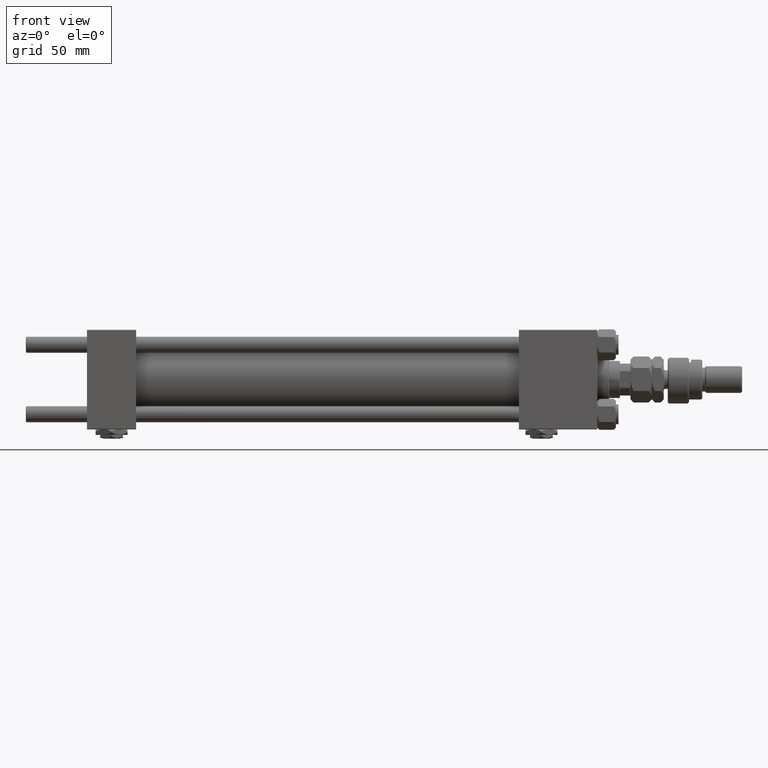
[diagram: clean part render]
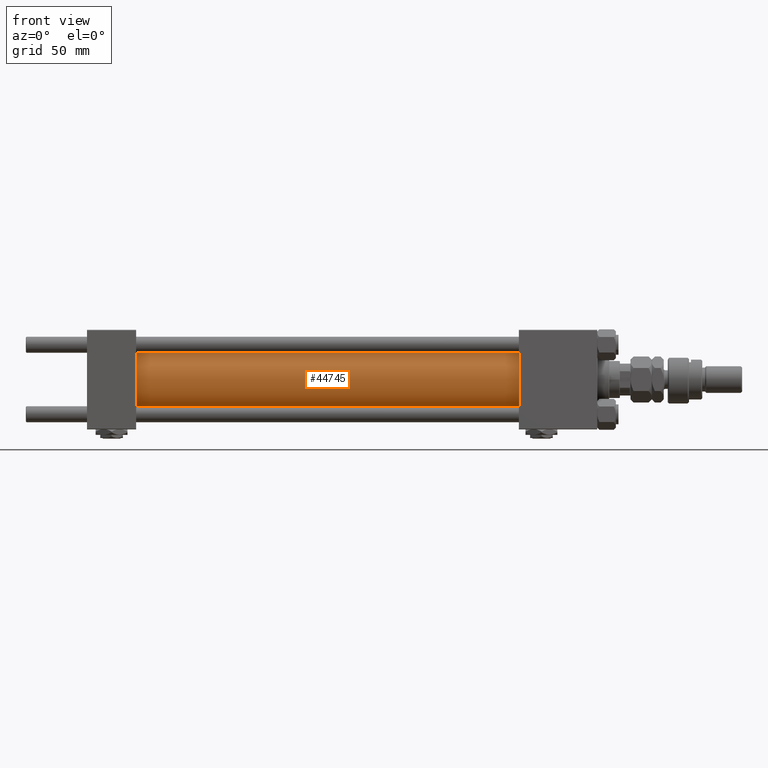
[diagram: same view with one face highlighted and labeled with its STEP entity id]
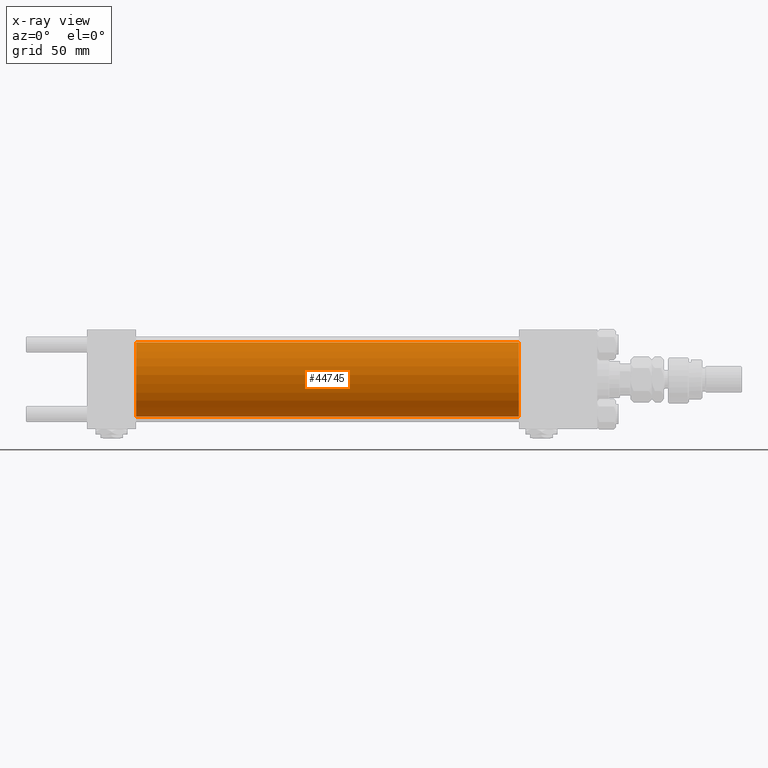
[diagram: x-ray of the same camera — body ghosted, the highlighted face saturated]
A machine part, front view. The second image highlights one B-rep face of the part: STEP entity #44745.
The next image is the same camera in x-ray: the body ghosted, the highlighted face saturated — about 0% of this face is hidden behind the body in this view.
In plain terms, the highlighted cylindrical surface (partial cylindrical patch) has radius 28 mm, axis along (-1, -0, -0).
Its self-contained STEP definition (entity closure, byte-faithful):
#411 = DIRECTION ( 'NONE',  ( 0.000000000000000000, 0.000000000000000000, 1.000000000000000000 ) ) ;
#1520 = CARTESIAN_POINT ( 'NONE',  ( 324.9999999999999432, 0.000000000000000000, 28.00000000000000000 ) ) ;
#1709 = VERTEX_POINT ( 'NONE', #7541 ) ;
#1916 = AXIS2_PLACEMENT_3D ( 'NONE', #27615, #6343, #40327 ) ;
#5290 = EDGE_CURVE ( 'NONE', #23208, #25044, #40100, .T. ) ;
#5896 = VECTOR ( 'NONE', #52537, 1000.000000000000000 ) ;
#6343 = DIRECTION ( 'NONE',  ( 1.000000000000000000, 0.000000000000000000, 0.000000000000000000 ) ) ;
#7541 = CARTESIAN_POINT ( 'NONE',  ( 324.9999999999999432, 0.000000000000000000, 28.00000000000000000 ) ) ;
#8084 = AXIS2_PLACEMENT_3D ( 'NONE', #37982, #16174, #15633 ) ;
#8174 = FACE_OUTER_BOUND ( 'NONE', #13051, .T. ) ;
#9808 = LINE ( 'NONE', #1520, #31965 ) ;
#12799 = EDGE_CURVE ( 'NONE', #31441, #25044, #42296, .T. ) ;
#13051 = EDGE_LOOP ( 'NONE', ( #43344, #53099, #44429, #21620 ) ) ;
#15633 = DIRECTION ( 'NONE',  ( 0.000000000000000000, 0.000000000000000000, 1.000000000000000000 ) ) ;
#16172 = DIRECTION ( 'NONE',  ( 1.000000000000000000, -0.000000000000000000, 0.000000000000000000 ) ) ;
#16174 = DIRECTION ( 'NONE',  ( -1.000000000000000000, -0.000000000000000000, -0.000000000000000000 ) ) ;
#16710 = CARTESIAN_POINT ( 'NONE',  ( 36.99999999999997868, 0.000000000000000000, 0.000000000000000000 ) ) ;
#18476 = AXIS2_PLACEMENT_3D ( 'NONE', #16710, #16172, #411 ) ;
#21130 = CYLINDRICAL_SURFACE ( 'NONE', #8084, 28.00000000000000000 ) ;
#21620 = ORIENTED_EDGE ( 'NONE', *, *, #12799, .T. ) ;
#22835 = CARTESIAN_POINT ( 'NONE',  ( 36.99999999999997868, 0.000000000000000000, 28.00000000000000000 ) ) ;
#23208 = VERTEX_POINT ( 'NONE', #27928 ) ;
#25044 = VERTEX_POINT ( 'NONE', #31605 ) ;
#27615 = CARTESIAN_POINT ( 'NONE',  ( 324.9999999999999432, 0.000000000000000000, 0.000000000000000000 ) ) ;
#27928 = CARTESIAN_POINT ( 'NONE',  ( 324.9999999999999432, 3.429011037612589276E-15, -28.00000000000000000 ) ) ;
#31441 = VERTEX_POINT ( 'NONE', #22835 ) ;
#31605 = CARTESIAN_POINT ( 'NONE',  ( 36.99999999999997868, 3.429011037612589276E-15, -28.00000000000000000 ) ) ;
#31965 = VECTOR ( 'NONE', #48195, 1000.000000000000000 ) ;
#36232 = CARTESIAN_POINT ( 'NONE',  ( 324.9999999999999432, 3.429011037612589276E-15, -28.00000000000000000 ) ) ;
#37982 = CARTESIAN_POINT ( 'NONE',  ( 324.9999999999999432, 0.000000000000000000, 0.000000000000000000 ) ) ;
#40100 = LINE ( 'NONE', #36232, #5896 ) ;
#40327 = DIRECTION ( 'NONE',  ( 0.000000000000000000, 0.000000000000000000, -1.000000000000000000 ) ) ;
#42296 = CIRCLE ( 'NONE', #18476, 28.00000000000000000 ) ;
#43344 = ORIENTED_EDGE ( 'NONE', *, *, #5290, .F. ) ;
#44429 = ORIENTED_EDGE ( 'NONE', *, *, #46905, .T. ) ;
#44745 = ADVANCED_FACE ( 'NONE', ( #8174 ), #21130, .T. ) ;
#46099 = EDGE_CURVE ( 'NONE', #1709, #23208, #49559, .T. ) ;
#46905 = EDGE_CURVE ( 'NONE', #1709, #31441, #9808, .T. ) ;
#48195 = DIRECTION ( 'NONE',  ( -1.000000000000000000, -0.000000000000000000, -0.000000000000000000 ) ) ;
#49559 = CIRCLE ( 'NONE', #1916, 28.00000000000000000 ) ;
#52537 = DIRECTION ( 'NONE',  ( -1.000000000000000000, -0.000000000000000000, -0.000000000000000000 ) ) ;
#53099 = ORIENTED_EDGE ( 'NONE', *, *, #46099, .F. ) ;